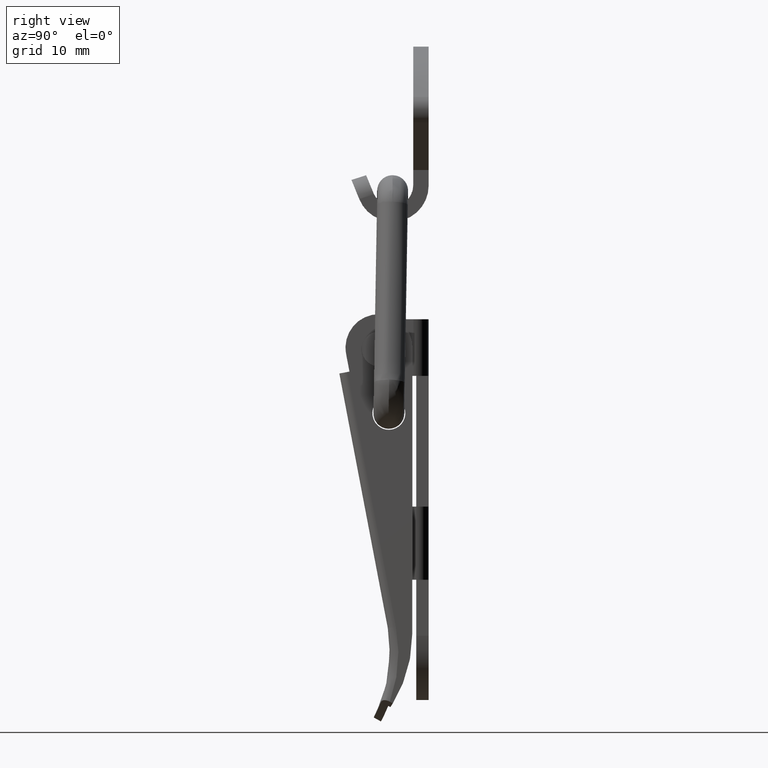
[diagram: clean part render]
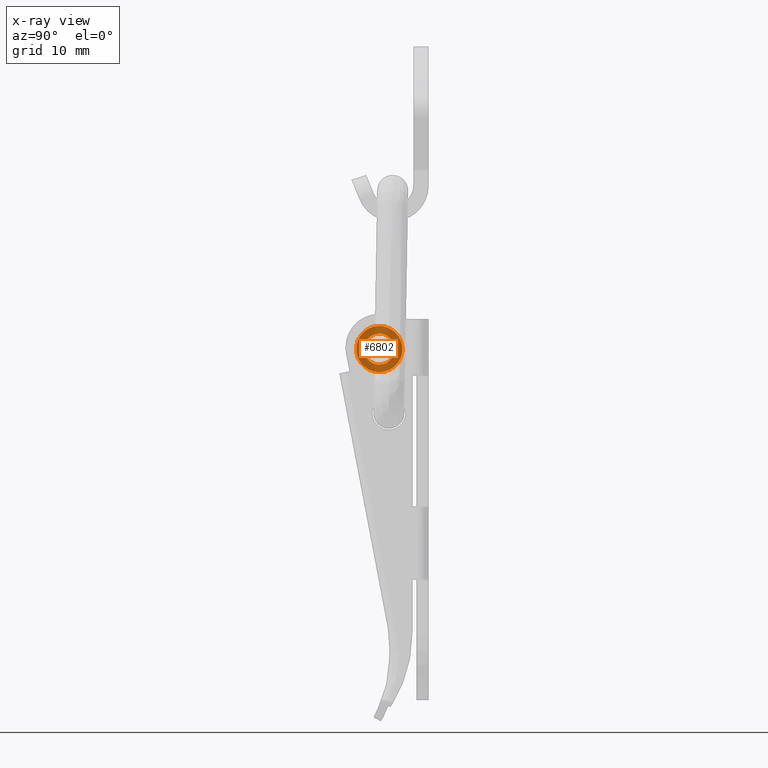
[diagram: x-ray — body ghosted, one internal face saturated and labeled with its STEP entity id]
A machine part, right view, then the same camera in x-ray: the body is ghosted and one INTERNAL B-rep face — a face not visible from any outside direction — is saturated and labeled: STEP entity #6802.
In plain terms, the highlighted face is a freeform B-spline surface patch.
Its self-contained STEP definition (entity closure, byte-faithful):
#6645=CARTESIAN_POINT('',(-8.000000000000146,0.197202197609388,-15.492572809684891));
#6646=VERTEX_POINT('',#6645);
#6652=CARTESIAN_POINT('',(-8.000000000000171,-1.300000000000011,-13.901000000000000));
#6653=VERTEX_POINT('',#6652);
#6654=CARTESIAN_POINT('',(-8.000000000000171,0.197202197609388,-15.492572809684884));
#6655=CARTESIAN_POINT('',(-8.000000000000171,0.199999999999989,-15.446829145139725));
#6656=CARTESIAN_POINT('',(-8.000000000000171,0.199999999999989,-15.401000000000000));
#6657=CARTESIAN_POINT('',(-8.000000000000171,0.199999999999989,-13.900999999999996));
#6658=CARTESIAN_POINT('',(-8.000000000000171,-1.300000000000011,-13.901000000000000));
#6666=(BOUNDED_CURVE()B_SPLINE_CURVE(2,(#6654,#6655,#6656,#6657,#6658),.UNSPECIFIED.,.F.,.U.)B_SPLINE_CURVE_WITH_KNOTS((3,2,3),(0.239332962197875,0.250000000000000,0.500000000000000),.UNSPECIFIED.)CURVE()GEOMETRIC_REPRESENTATION_ITEM()RATIONAL_B_SPLINE_CURVE((0.976072041578701,0.987502787851723,1.0,0.707106781186548,1.0))REPRESENTATION_ITEM(''));
#6667=EDGE_CURVE('',#6646,#6653,#6666,.T.);
#6669=CARTESIAN_POINT('',(-8.000000000000146,-2.797202197609411,-15.309427190315111));
#6670=VERTEX_POINT('',#6669);
#6671=CARTESIAN_POINT('',(-8.000000000000171,-1.300000000000011,-13.901000000000000));
#6672=CARTESIAN_POINT('',(-8.000000000000172,-2.711059099997292,-13.900999999999998));
#6673=CARTESIAN_POINT('',(-8.000000000000171,-2.797202197609411,-15.309427190315109));
#6681=(BOUNDED_CURVE()B_SPLINE_CURVE(2,(#6671,#6672,#6673),.UNSPECIFIED.,.F.,.U.)B_SPLINE_CURVE_WITH_KNOTS((3,3),(0.500000000000000,0.739332962197875),.UNSPECIFIED.)CURVE()GEOMETRIC_REPRESENTATION_ITEM()RATIONAL_B_SPLINE_CURVE((1.0,0.719603993334824,0.976072041578701))REPRESENTATION_ITEM(''));
#6682=EDGE_CURVE('',#6653,#6670,#6681,.T.);
#6714=CARTESIAN_POINT('',(-8.000000000000171,-1.300000000000011,-16.901000000000000));
#6715=VERTEX_POINT('',#6714);
#6716=CARTESIAN_POINT('',(-8.000000000000171,-2.797202197609412,-15.309427190315114));
#6717=CARTESIAN_POINT('',(-8.000000000000171,-2.800000000000011,-15.355170854860276));
#6718=CARTESIAN_POINT('',(-8.000000000000171,-2.800000000000011,-15.401000000000000));
#6719=CARTESIAN_POINT('',(-8.000000000000171,-2.800000000000011,-16.901000000000000));
#6720=CARTESIAN_POINT('',(-8.000000000000171,-1.300000000000011,-16.901000000000000));
#6728=(BOUNDED_CURVE()B_SPLINE_CURVE(2,(#6716,#6717,#6718,#6719,#6720),.UNSPECIFIED.,.F.,.U.)B_SPLINE_CURVE_WITH_KNOTS((3,2,3),(0.739332962197875,0.750000000000000,1.0),.UNSPECIFIED.)CURVE()GEOMETRIC_REPRESENTATION_ITEM()RATIONAL_B_SPLINE_CURVE((0.976072041578701,0.987502787851723,1.0,0.707106781186548,1.0))REPRESENTATION_ITEM(''));
#6729=EDGE_CURVE('',#6670,#6715,#6728,.T.);
#6731=CARTESIAN_POINT('',(-8.000000000000171,-1.300000000000011,-16.901000000000000));
#6732=CARTESIAN_POINT('',(-8.000000000000171,0.111059099997269,-16.901000000000007));
#6733=CARTESIAN_POINT('',(-8.000000000000171,0.197202197609388,-15.492572809684892));
#6741=(BOUNDED_CURVE()B_SPLINE_CURVE(2,(#6731,#6732,#6733),.UNSPECIFIED.,.F.,.U.)B_SPLINE_CURVE_WITH_KNOTS((3,3),(0.0,0.239332962197875),.UNSPECIFIED.)CURVE()GEOMETRIC_REPRESENTATION_ITEM()RATIONAL_B_SPLINE_CURVE((1.0,0.719603993334824,0.976072041578701))REPRESENTATION_ITEM(''));
#6742=EDGE_CURVE('',#6715,#6646,#6741,.T.);
#6748=CARTESIAN_POINT('',(-8.000000000000171,-3.775023204872446,-17.876023204872659));
#6749=CARTESIAN_POINT('',(-8.000000000000171,-3.775023204872446,-12.925976674415841));
#6750=CARTESIAN_POINT('',(-8.000000000000171,1.175023325583934,-17.876023204872659));
#6751=CARTESIAN_POINT('',(-8.000000000000171,1.175023325583934,-12.925976674415841));
#6752=B_SPLINE_SURFACE_WITH_KNOTS('',1,1,((#6748,#6750),(#6749,#6751)),.UNSPECIFIED.,.F.,.F.,.U.,(2,2),(2,2),(0.0,4.950046530456817),(0.0,4.950046530456380),.UNSPECIFIED.);
#6753=CARTESIAN_POINT('',(-8.000000000000171,-1.300000000000011,-17.651225669238482));
#6754=VERTEX_POINT('',#6753);
#6755=CARTESIAN_POINT('',(-8.000000000000171,-1.300000000000011,-13.150774330761530));
#6756=VERTEX_POINT('',#6755);
#6757=CARTESIAN_POINT('',(-8.000000000000171,-1.300000000000011,-17.651225669238482));
#6758=CARTESIAN_POINT('',(-8.000000000000174,-1.051459326060396,-17.651386210546331));
#6759=CARTESIAN_POINT('',(-8.000000000000155,-0.628156940465344,-17.580321483702068));
#6760=CARTESIAN_POINT('',(-8.000000000000181,-0.026651724146069,-17.291388375847308));
#6761=CARTESIAN_POINT('',(-8.000000000000183,0.392366705626679,-16.920889167651090));
#6762=CARTESIAN_POINT('',(-8.000000000000156,0.708451900534232,-16.453876389591500));
#6763=CARTESIAN_POINT('',(-8.000000000000187,0.918609840223793,-15.928618338513370));
#6764=CARTESIAN_POINT('',(-8.000000000000155,0.977124018388769,-15.334886969948320));
#6765=CARTESIAN_POINT('',(-8.000000000000210,0.886720128039672,-14.814785931319211));
#6766=CARTESIAN_POINT('',(-8.000000000000146,0.719947111331425,-14.374369219747290));
#6767=CARTESIAN_POINT('',(-8.000000000000279,0.432262354152380,-13.919819361597851));
#6768=CARTESIAN_POINT('',(-8.000000000000194,-0.011879624107586,-13.522292232054269));
#6769=CARTESIAN_POINT('',(-7.999999999999994,-0.609755341952557,-13.225930367110070));
#6770=CARTESIAN_POINT('',(-8.000000000000453,-1.042252257236248,-13.150615462586520));
#6771=CARTESIAN_POINT('',(-8.000000000000171,-1.300000000000011,-13.150774330761530));
#6772=B_SPLINE_CURVE_WITH_KNOTS('',3,(#6757,#6758,#6759,#6760,#6761,#6762,#6763,#6764,#6765,#6766,#6767,#6768,#6769,#6770,#6771),.UNSPECIFIED.,.F.,.U.,(4,1,1,1,1,1,1,1,1,1,1,1,4),(0.000000286659395,0.745566163848301,1.270261809107309,1.988259322465003,2.402490394771265,2.954796656673824,3.672734317086268,4.169791811694493,4.528789227437351,5.081079486063642,5.771468045929151,6.296149362632893,7.069336788294339),.UNSPECIFIED.);
#6773=EDGE_CURVE('',#6754,#6756,#6772,.T.);
#6774=ORIENTED_EDGE('',*,*,#6773,.T.);
#6775=CARTESIAN_POINT('',(-8.000000000000171,-1.300000000000011,-13.150774330761530));
#6776=CARTESIAN_POINT('',(-8.000000000000160,-1.456477253555108,-13.150762933563771));
#6777=CARTESIAN_POINT('',(-8.000000000000171,-1.806263176496237,-13.187368175983471));
#6778=CARTESIAN_POINT('',(-8.000000000000192,-2.358050022765518,-13.380911632020570));
#6779=CARTESIAN_POINT('',(-8.000000000000167,-2.820516734888655,-13.710884235847651));
#6780=CARTESIAN_POINT('',(-8.000000000000169,-3.180154428418081,-14.133157753468531));
#6781=CARTESIAN_POINT('',(-8.000000000000179,-3.442565114462051,-14.623873045368191));
#6782=CARTESIAN_POINT('',(-8.000000000000174,-3.563615873075679,-15.178917710007729));
#6783=CARTESIAN_POINT('',(-8.000000000000162,-3.541114113665741,-15.788994161994401));
#6784=CARTESIAN_POINT('',(-8.000000000000179,-3.395495332932720,-16.280044315400989));
#6785=CARTESIAN_POINT('',(-8.000000000000169,-3.130211474372505,-16.735016191966182));
#6786=CARTESIAN_POINT('',(-8.000000000000188,-2.805118104214410,-17.102768932965692));
#6787=CARTESIAN_POINT('',(-8.000000000000126,-2.385936499958016,-17.394125332977548));
#6788=CARTESIAN_POINT('',(-8.000000000000313,-1.870641667004567,-17.600176955215169));
#6789=CARTESIAN_POINT('',(-7.999999999999826,-1.511706900191765,-17.651303390434791));
#6790=CARTESIAN_POINT('',(-8.000000000000171,-1.300000000000011,-17.651225669238482));
#6791=B_SPLINE_CURVE_WITH_KNOTS('',3,(#6775,#6776,#6777,#6778,#6779,#6780,#6781,#6782,#6783,#6784,#6785,#6786,#6787,#6788,#6789,#6790),.UNSPECIFIED.,.F.,.U.,(4,1,1,1,1,1,1,1,1,1,1,1,1,4),(0.000000286726914,0.469441127200549,1.049352214315041,1.739722266726574,2.153945421186386,2.706260087075745,3.396603752660432,3.838386467716782,4.528789227459193,4.915387057707181,5.412465230746324,5.992381799811223,6.434236897607881,7.069336788294105),.UNSPECIFIED.);
#6792=EDGE_CURVE('',#6756,#6754,#6791,.T.);
#6793=ORIENTED_EDGE('',*,*,#6792,.T.);
#6794=EDGE_LOOP('',(#6774,#6793));
#6795=FACE_OUTER_BOUND('',#6794,.T.);
#6796=ORIENTED_EDGE('',*,*,#6682,.F.);
#6797=ORIENTED_EDGE('',*,*,#6667,.F.);
#6798=ORIENTED_EDGE('',*,*,#6742,.F.);
#6799=ORIENTED_EDGE('',*,*,#6729,.F.);
#6800=EDGE_LOOP('',(#6796,#6797,#6798,#6799));
#6801=FACE_BOUND('',#6800,.T.);
#6802=ADVANCED_FACE('',(#6795,#6801),#6752,.F.);